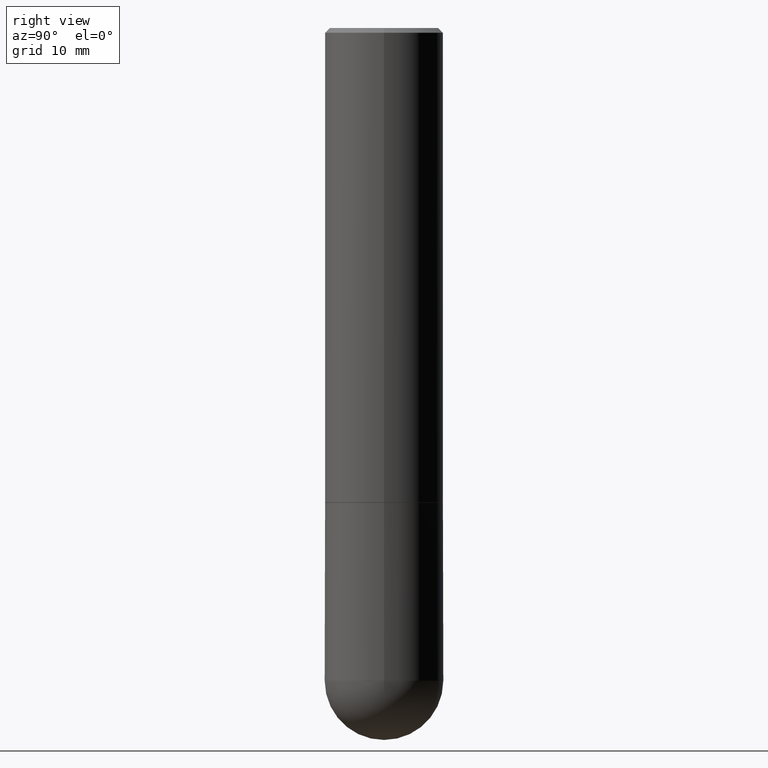
[diagram: clean part render]
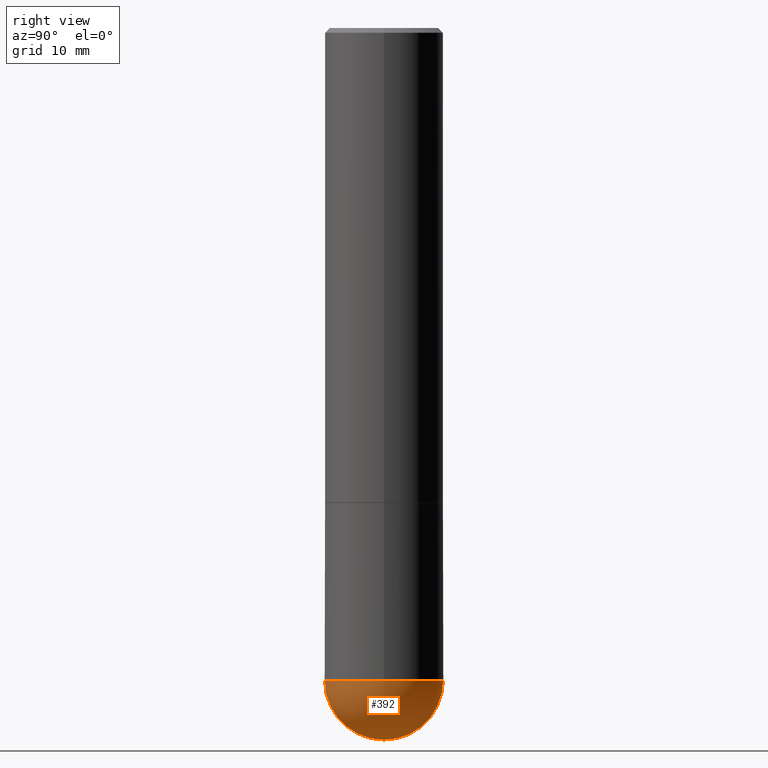
[diagram: same view with one face highlighted and labeled with its STEP entity id]
A machine part, right view. The second image highlights one B-rep face of the part: STEP entity #392.
In plain terms, the highlighted spherical surface has radius 6.35 mm.
Its self-contained STEP definition (entity closure, byte-faithful):
#7 = EDGE_CURVE ( 'NONE', #353, #130, #346, .T. ) ;
#9 = CARTESIAN_POINT ( 'NONE',  ( 6.725039217009124520E-29, -9.601573681818649859E-15, -2.750000000000000000 ) ) ;
#11 = DIRECTION ( 'NONE',  ( 1.000000000000000000, -6.982962677686262766E-15, 0.000000000000000000 ) ) ;
#39 = DIRECTION ( 'NONE',  ( -2.445468806185136597E-29, 3.491481338843145583E-15, 1.000000000000000000 ) ) ;
#54 = AXIS2_PLACEMENT_3D ( 'NONE', #304, #133, #268 ) ;
#59 = AXIS2_PLACEMENT_3D ( 'NONE', #308, #39, #11 ) ;
#65 = EDGE_CURVE ( 'NONE', #121, #130, #125, .T. ) ;
#69 = DIRECTION ( 'NONE',  ( -1.000000000000000000, 7.105427357601001070E-15, -4.926315508542082329E-29 ) ) ;
#71 = DIRECTION ( 'NONE',  ( -2.445468806185136597E-29, 3.491481338843145583E-15, 1.000000000000000000 ) ) ;
#72 = CIRCLE ( 'NONE', #116, 0.2500000000000000000 ) ;
#81 = AXIS2_PLACEMENT_3D ( 'NONE', #371, #406, #316 ) ;
#86 = EDGE_CURVE ( 'NONE', #353, #231, #350, .T. ) ;
#87 = EDGE_CURVE ( 'NONE', #231, #121, #72, .T. ) ;
#90 = ORIENTED_EDGE ( 'NONE', *, *, #7, .T. ) ;
#113 = SPHERICAL_SURFACE ( 'NONE', #81, 0.2500000000000001110 ) ;
#116 = AXIS2_PLACEMENT_3D ( 'NONE', #9, #71, #354 ) ;
#121 = VERTEX_POINT ( 'NONE', #388 ) ;
#125 = CIRCLE ( 'NONE', #59, 0.2500000000000000000 ) ;
#130 = VERTEX_POINT ( 'NONE', #276 ) ;
#133 = DIRECTION ( 'NONE',  ( 1.000000000000000000, -6.982962677686265922E-15, 4.883557194083112340E-29 ) ) ;
#180 = FACE_OUTER_BOUND ( 'NONE', #223, .T. ) ;
#200 = ORIENTED_EDGE ( 'NONE', *, *, #65, .F. ) ;
#223 = EDGE_LOOP ( 'NONE', ( #330, #90, #200, #380 ) ) ;
#231 = VERTEX_POINT ( 'NONE', #340 ) ;
#268 = DIRECTION ( 'NONE',  ( 6.982962677686266711E-15, 1.000000000000000000, 0.000000000000000000 ) ) ;
#276 = CARTESIAN_POINT ( 'NONE',  ( 1.745740669421632745E-15, 0.2499999999999902300, -2.750000000000000888 ) ) ;
#286 = CARTESIAN_POINT ( 'NONE',  ( 7.015976219256266741E-29, -1.093331829968014633E-14, -3.000000000000000888 ) ) ;
#304 = CARTESIAN_POINT ( 'NONE',  ( 6.393919439095240515E-29, -1.007575604995870173E-14, -2.750000000000000444 ) ) ;
#308 = CARTESIAN_POINT ( 'NONE',  ( 6.725039217009124520E-29, -9.601573681818649859E-15, -2.750000000000000000 ) ) ;
#310 = DIRECTION ( 'NONE',  ( -7.105427357601001859E-15, -1.000000000000000000, 0.000000000000000000 ) ) ;
#316 = DIRECTION ( 'NONE',  ( 6.982962677686265922E-15, 1.000000000000000000, -4.370956789862818783E-15 ) ) ;
#330 = ORIENTED_EDGE ( 'NONE', *, *, #86, .F. ) ;
#340 = CARTESIAN_POINT ( 'NONE',  ( -1.776356839400184989E-15, -0.2500000000000098810, -2.749999999999998668 ) ) ;
#346 = CIRCLE ( 'NONE', #54, 0.2500000000000001110 ) ;
#350 = CIRCLE ( 'NONE', #383, 0.2500000000000001110 ) ;
#353 = VERTEX_POINT ( 'NONE', #286 ) ;
#354 = DIRECTION ( 'NONE',  ( 1.000000000000000000, -6.982962677686262766E-15, 0.000000000000000000 ) ) ;
#362 = CARTESIAN_POINT ( 'NONE',  ( 6.393919439095240515E-29, -1.007575604995870173E-14, -2.750000000000000444 ) ) ;
#371 = CARTESIAN_POINT ( 'NONE',  ( 6.393919439095240515E-29, -1.007575604995870173E-14, -2.750000000000000444 ) ) ;
#380 = ORIENTED_EDGE ( 'NONE', *, *, #87, .F. ) ;
#383 = AXIS2_PLACEMENT_3D ( 'NONE', #362, #69, #310 ) ;
#388 = CARTESIAN_POINT ( 'NONE',  ( 0.2500000000000000000, -1.003800884917403995E-14, -2.750000000000000000 ) ) ;
#392 = ADVANCED_FACE ( 'NONE', ( #180 ), #113, .T. ) ;
#406 = DIRECTION ( 'NONE',  ( -1.000000000000000000, 6.982962677686265922E-15, -4.883557194083113462E-29 ) ) ;